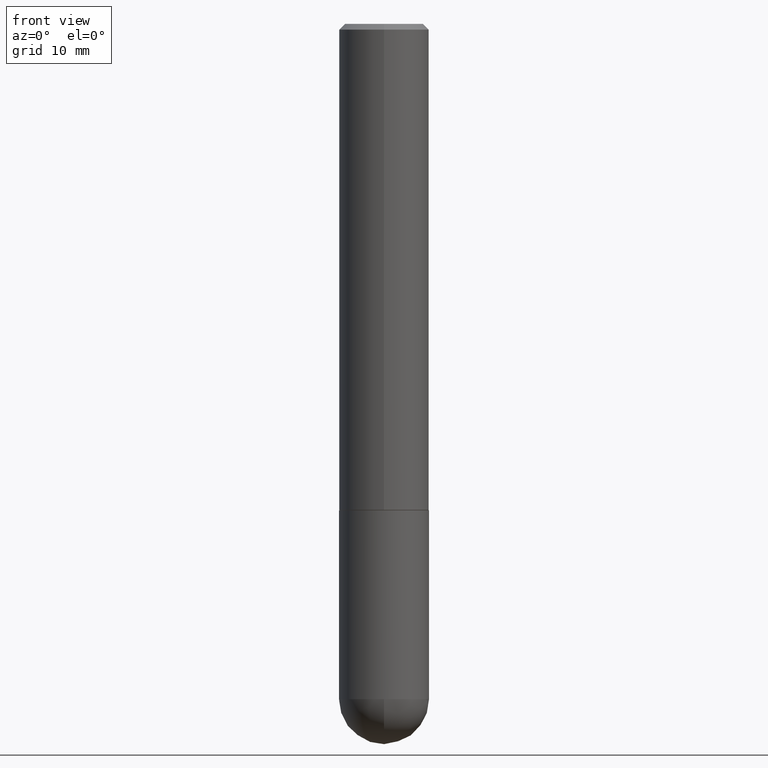
[diagram: clean part render]
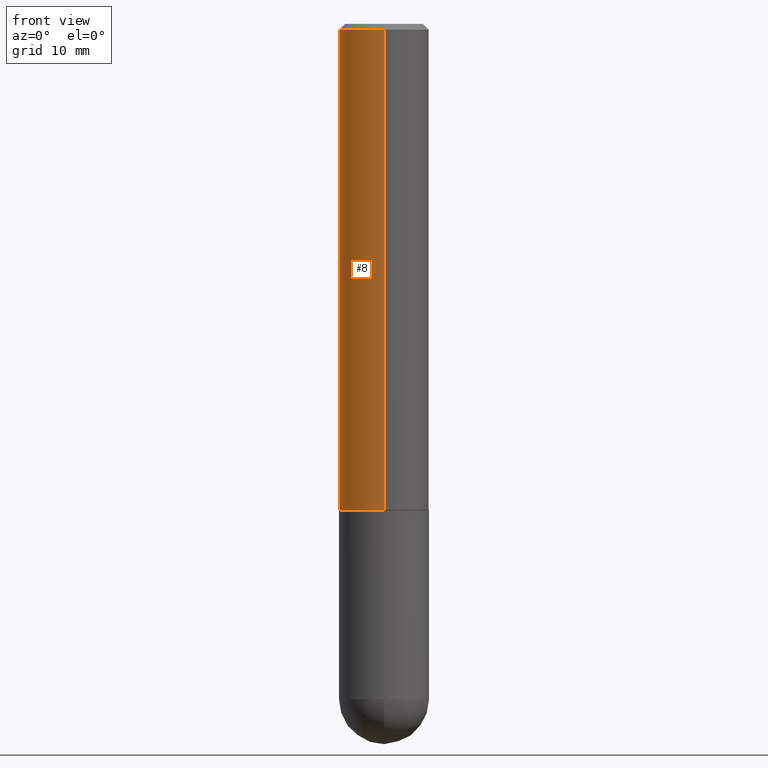
[diagram: same view with one face highlighted and labeled with its STEP entity id]
A machine part, front view. The second image highlights one B-rep face of the part: STEP entity #8.
In plain terms, the highlighted cylindrical surface (partial cylindrical patch) has radius 3.9688 mm, axis along (-0, 0, 1).
Its self-contained STEP definition (entity closure, byte-faithful):
#2 = CARTESIAN_POINT ( 'NONE',  ( 1.110223024625157132E-15, 0.1562500000000001110, -5.454067469963343169E-16 ) ) ;
#8 = ADVANCED_FACE ( 'NONE', ( #206 ), #21, .T. ) ;
#21 = CYLINDRICAL_SURFACE ( 'NONE', #160, 0.1562500000000001110 ) ;
#24 = VERTEX_POINT ( 'NONE', #115 ) ;
#25 = DIRECTION ( 'NONE',  ( -2.446082020685560042E-29, 3.490603180776537498E-15, 1.000000000000000000 ) ) ;
#65 = DIRECTION ( 'NONE',  ( -2.446082020685560042E-29, 3.490603180776537498E-15, 1.000000000000000000 ) ) ;
#86 = DIRECTION ( 'NONE',  ( -6.982962677686265922E-15, -1.000000000000000000, 3.496765431890251792E-15 ) ) ;
#95 = CARTESIAN_POINT ( 'NONE',  ( 1.110223024625178431E-15, 0.1562499999999943379, -1.687000000000000499 ) ) ;
#110 = EDGE_CURVE ( 'NONE', #159, #330, #390, .T. ) ;
#111 = VECTOR ( 'NONE', #25, 39.37007874015748143 ) ;
#115 = CARTESIAN_POINT ( 'NONE',  ( -1.071952812151801215E-15, -0.1562500000000000833, -0.01999999999999948694 ) ) ;
#124 = EDGE_CURVE ( 'NONE', #330, #24, #268, .T. ) ;
#159 = VERTEX_POINT ( 'NONE', #95 ) ;
#160 = AXIS2_PLACEMENT_3D ( 'NONE', #371, #335, #191 ) ;
#179 = EDGE_CURVE ( 'NONE', #303, #24, #267, .T. ) ;
#191 = DIRECTION ( 'NONE',  ( -6.982962677686265922E-15, -1.000000000000000000, 3.490603180776537104E-15 ) ) ;
#202 = CARTESIAN_POINT ( 'NONE',  ( -1.091087918388479765E-15, -0.1562500000000001110, 5.454067469963343169E-16 ) ) ;
#206 = FACE_OUTER_BOUND ( 'NONE', #409, .T. ) ;
#215 = DIRECTION ( 'NONE',  ( -6.982962677686265133E-15, -1.000000000000000000, 3.496765431890256920E-15 ) ) ;
#228 = CARTESIAN_POINT ( 'NONE',  ( -1.091087918388439336E-15, -0.1562500000000060785, -1.686999999999999611 ) ) ;
#240 = DIRECTION ( 'NONE',  ( -2.446082020685560042E-29, 3.490603180776537498E-15, 1.000000000000000000 ) ) ;
#252 = CARTESIAN_POINT ( 'NONE',  ( 1.091087918388479568E-15, 0.1562499999999999445, -0.02000000000000057981 ) ) ;
#256 = DIRECTION ( 'NONE',  ( -2.446082020685560042E-29, 3.490603180776537498E-15, 1.000000000000000000 ) ) ;
#262 = AXIS2_PLACEMENT_3D ( 'NONE', #329, #240, #86 ) ;
#264 = ORIENTED_EDGE ( 'NONE', *, *, #179, .F. ) ;
#267 = CIRCLE ( 'NONE', #403, 0.1562500000000000000 ) ;
#268 = LINE ( 'NONE', #202, #111 ) ;
#278 = CARTESIAN_POINT ( 'NONE',  ( 4.892164041371128702E-31, -6.981206361553086139E-17, -0.02000000000000003511 ) ) ;
#279 = VECTOR ( 'NONE', #256, 39.37007874015748143 ) ;
#294 = EDGE_CURVE ( 'NONE', #159, #303, #343, .T. ) ;
#303 = VERTEX_POINT ( 'NONE', #252 ) ;
#329 = CARTESIAN_POINT ( 'NONE',  ( 4.126540368896540526E-29, -5.888647565970019255E-15, -1.687000000000000055 ) ) ;
#330 = VERTEX_POINT ( 'NONE', #228 ) ;
#335 = DIRECTION ( 'NONE',  ( -2.446082020685560042E-29, 3.490603180776537498E-15, 1.000000000000000000 ) ) ;
#343 = LINE ( 'NONE', #2, #279 ) ;
#346 = ORIENTED_EDGE ( 'NONE', *, *, #294, .F. ) ;
#371 = CARTESIAN_POINT ( 'NONE',  ( 0.000000000000000000, 0.000000000000000000, 0.000000000000000000 ) ) ;
#375 = ORIENTED_EDGE ( 'NONE', *, *, #124, .T. ) ;
#384 = ORIENTED_EDGE ( 'NONE', *, *, #110, .T. ) ;
#390 = CIRCLE ( 'NONE', #262, 0.1562500000000002220 ) ;
#403 = AXIS2_PLACEMENT_3D ( 'NONE', #278, #65, #215 ) ;
#409 = EDGE_LOOP ( 'NONE', ( #346, #384, #375, #264 ) ) ;